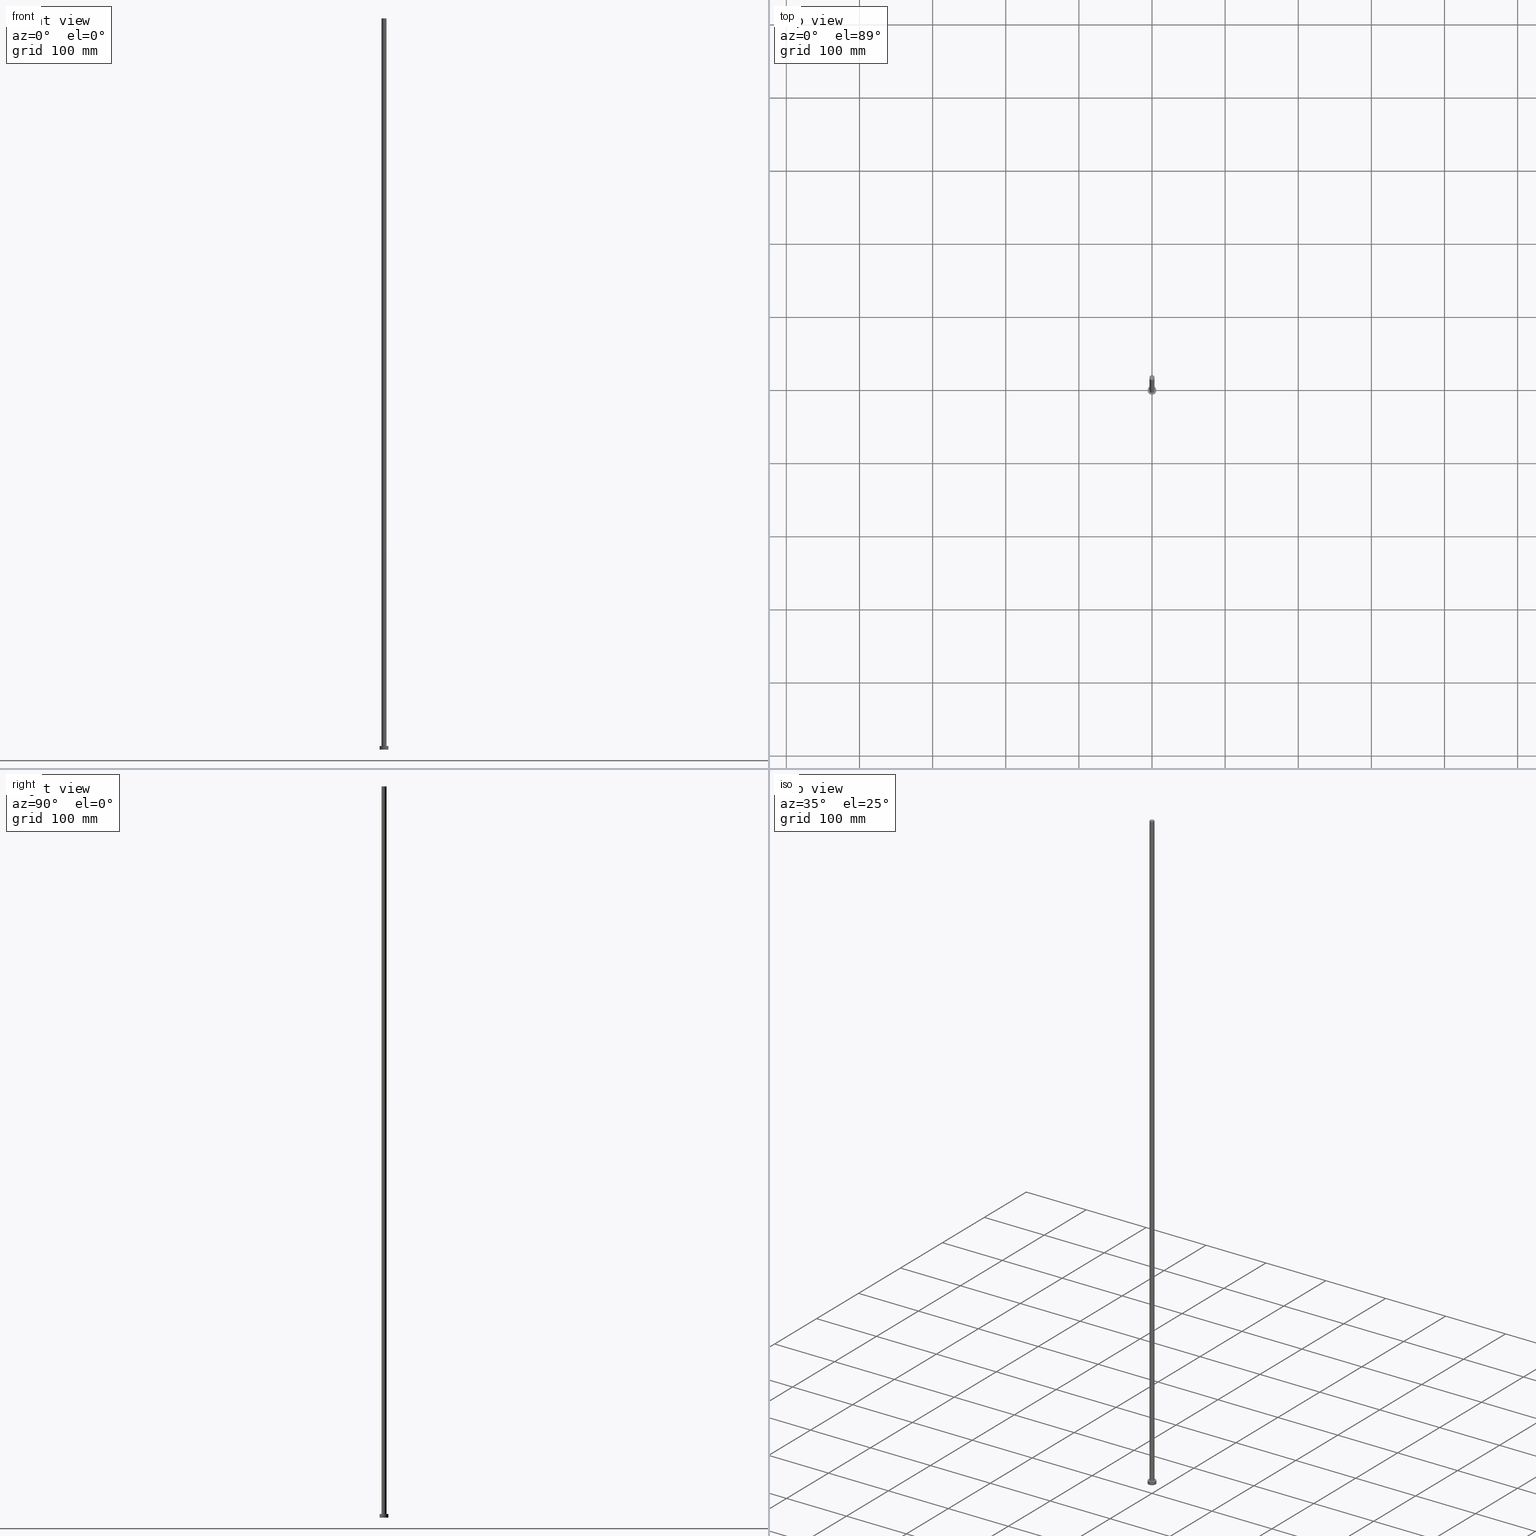
[diagram: canonical four-view strip — front | top / right | iso, engineering-drawing reading convention]
A machine part, canonical four-view strip (front | top / right | iso — engineering-drawing reading convention). The complete STEP part file that produces these views, byte-faithful:
ISO-10303-21;
HEADER;
FILE_DESCRIPTION (( 'STEP AP203' ),
    '1' );
FILE_NAME ('966f.STEP',
    '2023-02-13T14:47:50',
    ( '' ),
    ( '' ),
    'SwSTEP 2.0',
    'SolidWorks 2019',
    '' );
FILE_SCHEMA (( 'CONFIG_CONTROL_DESIGN' ));
ENDSEC;

DATA;
#1 = AXIS2_PLACEMENT_3D ( 'NONE', #232, #108, #174 ) ;
#2 = ORIENTED_EDGE ( 'NONE', *, *, #229, .T. ) ;
#3 = PERSON_AND_ORGANIZATION_ROLE ( 'classification_officer' ) ;
#4 = DIRECTION ( 'NONE',  ( -1.000000000000000000, 0.000000000000000000, 0.000000000000000000 ) ) ;
#5 = CARTESIAN_POINT ( 'NONE',  ( 0.000000000000000000, 0.000000000000000000, 5.000000000000000000 ) ) ;
#6 = CARTESIAN_POINT ( 'NONE',  ( 0.000000000000000000, 0.000000000000000000, 5.000000000000000000 ) ) ;
#7 = AXIS2_PLACEMENT_3D ( 'NONE', #9, #141, #186 ) ;
#8 = CYLINDRICAL_SURFACE ( 'NONE', #11, 6.000000000000000888 ) ;
#9 = CARTESIAN_POINT ( 'NONE',  ( 0.000000000000000000, 0.000000000000000000, 1000.000000000000000 ) ) ;
#10 = AXIS2_PLACEMENT_3D ( 'NONE', #151, #128, #70 ) ;
#11 = AXIS2_PLACEMENT_3D ( 'NONE', #6, #218, #4 ) ;
#12 = LOCAL_TIME ( 15, 47, 50.00000000000000000, #167 ) ;
#13 = EDGE_CURVE ( 'NONE', #220, #180, #119, .T. ) ;
#14 = CYLINDRICAL_SURFACE ( 'NONE', #152, 3.500000000000000000 ) ;
#15 = PERSON_AND_ORGANIZATION ( #85, #160 ) ;
#16 = CC_DESIGN_SECURITY_CLASSIFICATION ( #138, ( #139 ) ) ;
#17 = APPROVAL ( #49, 'NEUR�EN�' ) ;
#18 = EDGE_CURVE ( 'NONE', #182, #220, #83, .T. ) ;
#19 = ORIENTED_EDGE ( 'NONE', *, *, #80, .F. ) ;
#20 = EDGE_LOOP ( 'NONE', ( #200, #82, #179, #238 ) ) ;
#21 = AXIS2_PLACEMENT_3D ( 'NONE', #233, #133, #98 ) ;
#22 = ADVANCED_FACE ( 'NONE', ( #243 ), #136, .F. ) ;
#23 = ORIENTED_EDGE ( 'NONE', *, *, #18, .T. ) ;
#24 = DIRECTION ( 'NONE',  ( 0.000000000000000000, 0.000000000000000000, 1.000000000000000000 ) ) ;
#25 = DIRECTION ( 'NONE',  ( -1.000000000000000000, 0.000000000000000000, 0.000000000000000000 ) ) ;
#26 = ORIENTED_EDGE ( 'NONE', *, *, #169, .T. ) ;
#27 = CARTESIAN_POINT ( 'NONE',  ( 6.000000000000000888, 7.347880794884120722E-16, 0.000000000000000000 ) ) ;
#28 = VERTEX_POINT ( 'NONE', #50 ) ;
#29 = DIRECTION ( 'NONE',  ( 1.000000000000000000, 0.000000000000000000, -0.000000000000000000 ) ) ;
#30 = CARTESIAN_POINT ( 'NONE',  ( -3.500000000000000000, 0.000000000000000000, 5.000000000000000000 ) ) ;
#31 = ADVANCED_FACE ( 'NONE', ( #75, #36 ), #52, .T. ) ;
#32 = LOCAL_TIME ( 15, 47, 50.00000000000000000, #159 ) ;
#33 = DIRECTION ( 'NONE',  ( -0.000000000000000000, -0.000000000000000000, -1.000000000000000000 ) ) ;
#34 = AXIS2_PLACEMENT_3D ( 'NONE', #197, #24, #178 ) ;
#35 = APPLICATION_PROTOCOL_DEFINITION ( 'international standard', 'config_control_design', 1994, #88 ) ;
#36 = FACE_OUTER_BOUND ( 'NONE', #142, .T. ) ;
#37 = CIRCLE ( 'NONE', #249, 3.500000000000000000 ) ;
#38 = CALENDAR_DATE ( 2023, 13, 2 ) ;
#39 = DIRECTION ( 'NONE',  ( 1.000000000000000000, 0.000000000000000000, 0.000000000000000000 ) ) ;
#40 = VERTEX_POINT ( 'NONE', #175 ) ;
#41 = VECTOR ( 'NONE', #161, 1000.000000000000000 ) ;
#42 = ORIENTED_EDGE ( 'NONE', *, *, #107, .F. ) ;
#43 = EDGE_CURVE ( 'NONE', #220, #182, #115, .T. ) ;
#44 = CARTESIAN_POINT ( 'NONE',  ( 6.000000000000000888, 7.347880794884120722E-16, 5.000000000000000000 ) ) ;
#45 = DATE_AND_TIME ( #150, #228 ) ;
#46 = CIRCLE ( 'NONE', #34, 6.000000000000000888 ) ;
#47 = APPROVAL_PERSON_ORGANIZATION ( #109, #17, #51 ) ;
#48 = EDGE_CURVE ( 'NONE', #223, #180, #46, .T. ) ;
#49 = APPROVAL_STATUS ( 'not_yet_approved' ) ;
#50 = CARTESIAN_POINT ( 'NONE',  ( 3.500000000000000000, 4.286263797015735609E-16, 5.000000000000000000 ) ) ;
#51 = APPROVAL_ROLE ( '' ) ;
#52 = PLANE ( 'NONE',  #102 ) ;
#53 = DATE_TIME_ROLE ( 'classification_date' ) ;
#54 = CARTESIAN_POINT ( 'NONE',  ( -6.000000000000000888, 0.000000000000000000, 5.000000000000000000 ) ) ;
#55 = CARTESIAN_POINT ( 'NONE',  ( 3.500000000000000000, 4.286263797015735609E-16, 1000.000000000000000 ) ) ;
#56 = APPROVAL ( #252, 'NEUR�EN�' ) ;
#57 = APPROVAL_PERSON_ORGANIZATION ( #135, #162, #171 ) ;
#58 = CYLINDRICAL_SURFACE ( 'NONE', #7, 3.500000000000000000 ) ;
#59 = CARTESIAN_POINT ( 'NONE',  ( 0.000000000000000000, 0.000000000000000000, 5.000000000000000000 ) ) ;
#60 = ORIENTED_EDGE ( 'NONE', *, *, #219, .T. ) ;
#61 = ADVANCED_FACE ( 'NONE', ( #225 ), #14, .T. ) ;
#62 = CARTESIAN_POINT ( 'NONE',  ( 0.000000000000000000, 0.000000000000000000, 1000.000000000000000 ) ) ;
#63 = FACE_OUTER_BOUND ( 'NONE', #101, .T. ) ;
#64 = CARTESIAN_POINT ( 'NONE',  ( 0.000000000000000000, 0.000000000000000000, 5.000000000000000000 ) ) ;
#65 = APPROVAL_ROLE ( '' ) ;
#66 = CC_DESIGN_DATE_AND_TIME_ASSIGNMENT ( #76, #53, ( #138 ) ) ;
#67 = AXIS2_PLACEMENT_3D ( 'NONE', #181, #118, #25 ) ;
#68 = APPROVAL_DATE_TIME ( #254, #17 ) ;
#69 = MANIFOLD_SOLID_BREP ( 'P�idat vysunut�m3', #156 ) ;
#70 = DIRECTION ( 'NONE',  ( 1.000000000000000000, 0.000000000000000000, 0.000000000000000000 ) ) ;
#71 = DESIGN_CONTEXT ( 'detailed design', #188, 'design' ) ;
#72 = ORIENTED_EDGE ( 'NONE', *, *, #193, .F. ) ;
#73 = PERSON_AND_ORGANIZATION ( #85, #160 ) ;
#74 = LOCAL_TIME ( 15, 47, 50.00000000000000000, #157 ) ;
#75 = FACE_BOUND ( 'NONE', #140, .T. ) ;
#76 = DATE_AND_TIME ( #38, #32 ) ;
#77 =( NAMED_UNIT ( * ) PLANE_ANGLE_UNIT ( ) SI_UNIT ( $, .RADIAN. ) );
#78 = FACE_OUTER_BOUND ( 'NONE', #20, .T. ) ;
#79 = DIRECTION ( 'NONE',  ( 0.000000000000000000, 0.000000000000000000, 1.000000000000000000 ) ) ;
#80 = EDGE_CURVE ( 'NONE', #182, #223, #224, .T. ) ;
#81 = ORIENTED_EDGE ( 'NONE', *, *, #13, .T. ) ;
#82 = ORIENTED_EDGE ( 'NONE', *, *, #80, .T. ) ;
#83 = CIRCLE ( 'NONE', #97, 6.000000000000000888 ) ;
#84 = DIRECTION ( 'NONE',  ( 0.000000000000000000, 0.000000000000000000, 1.000000000000000000 ) ) ;
#85 = PERSON ( 'NEUR�EN�', 'NEUR�EN�', 'NEUR�EN�', ('NEUR�EN�'), ('NEUR�EN�'), ('NEUR�EN�') ) ;
#86 = DIRECTION ( 'NONE',  ( 0.000000000000000000, 0.000000000000000000, 1.000000000000000000 ) ) ;
#87 = CARTESIAN_POINT ( 'NONE',  ( -3.500000000000000000, 0.000000000000000000, 1000.000000000000000 ) ) ;
#88 = APPLICATION_CONTEXT ( 'configuration controlled 3d designs of mechanical parts and assemblies' ) ;
#89 = CIRCLE ( 'NONE', #1, 3.500000000000000000 ) ;
#90 = PERSON_AND_ORGANIZATION_ROLE ( 'design_owner' ) ;
#91 = PERSON_AND_ORGANIZATION_ROLE ( 'creator' ) ;
#92 = UNCERTAINTY_MEASURE_WITH_UNIT (LENGTH_MEASURE( 1.000000000000000082E-05 ), #209, 'distance_accuracy_value', 'NONE');
#93 = LINE ( 'NONE', #55, #207 ) ;
#94 = CC_DESIGN_DATE_AND_TIME_ASSIGNMENT ( #237, #212, ( #163 ) ) ;
#95 = ORIENTED_EDGE ( 'NONE', *, *, #104, .F. ) ;
#96 = CARTESIAN_POINT ( 'NONE',  ( 0.000000000000000000, 0.000000000000000000, 0.000000000000000000 ) ) ;
#97 = AXIS2_PLACEMENT_3D ( 'NONE', #59, #196, #113 ) ;
#98 = DIRECTION ( 'NONE',  ( 1.000000000000000000, 0.000000000000000000, 0.000000000000000000 ) ) ;
#99 = DIRECTION ( 'NONE',  ( 1.000000000000000000, 0.000000000000000000, -0.000000000000000000 ) ) ;
#100 =( NAMED_UNIT ( * ) SI_UNIT ( $, .STERADIAN. ) SOLID_ANGLE_UNIT ( ) );
#101 = EDGE_LOOP ( 'NONE', ( #26, #2 ) ) ;
#102 = AXIS2_PLACEMENT_3D ( 'NONE', #134, #214, #99 ) ;
#103 = PRODUCT_DEFINITION_SHAPE ( 'NONE', 'NONE',  #163 ) ;
#104 = EDGE_CURVE ( 'NONE', #202, #28, #127, .T. ) ;
#105 = AXIS2_PLACEMENT_3D ( 'NONE', #106, #165, #253 ) ;
#106 = CARTESIAN_POINT ( 'NONE',  ( 0.000000000000000000, 0.000000000000000000, 0.000000000000000000 ) ) ;
#107 = EDGE_CURVE ( 'NONE', #180, #223, #137, .T. ) ;
#108 = DIRECTION ( 'NONE',  ( 0.000000000000000000, 0.000000000000000000, 1.000000000000000000 ) ) ;
#109 = PERSON_AND_ORGANIZATION ( #85, #160 ) ;
#110 = ORIENTED_EDGE ( 'NONE', *, *, #169, .F. ) ;
#111 = DATE_AND_TIME ( #215, #74 ) ;
#112 = LOCAL_TIME ( 15, 47, 50.00000000000000000, #153 ) ;
#113 = DIRECTION ( 'NONE',  ( 1.000000000000000000, 0.000000000000000000, 0.000000000000000000 ) ) ;
#114 = APPROVAL_DATE_TIME ( #111, #162 ) ;
#115 = CIRCLE ( 'NONE', #145, 6.000000000000000888 ) ;
#116 = ADVANCED_FACE ( 'NONE', ( #177 ), #8, .T. ) ;
#117 = EDGE_LOOP ( 'NONE', ( #199, #170, #60, #72 ) ) ;
#118 = DIRECTION ( 'NONE',  ( -0.000000000000000000, -0.000000000000000000, -1.000000000000000000 ) ) ;
#119 = LINE ( 'NONE', #54, #41 ) ;
#120 = ORIENTED_EDGE ( 'NONE', *, *, #248, .F. ) ;
#121 = ORIENTED_EDGE ( 'NONE', *, *, #219, .F. ) ;
#122 = CARTESIAN_POINT ( 'NONE',  ( 6.000000000000000888, 7.347880794884120722E-16, 5.000000000000000000 ) ) ;
#123 = PRODUCT_RELATED_PRODUCT_CATEGORY ( 'detail', '', ( #204 ) ) ;
#124 = CARTESIAN_POINT ( 'NONE',  ( 0.000000000000000000, 0.000000000000000000, 1000.000000000000000 ) ) ;
#125 = ADVANCED_FACE ( 'NONE', ( #78 ), #239, .T. ) ;
#126 = APPROVAL_DATE_TIME ( #45, #56 ) ;
#127 = CIRCLE ( 'NONE', #10, 3.500000000000000000 ) ;
#128 = DIRECTION ( 'NONE',  ( 0.000000000000000000, 0.000000000000000000, 1.000000000000000000 ) ) ;
#129 = PERSON_AND_ORGANIZATION_ROLE ( 'creator' ) ;
#130 = CALENDAR_DATE ( 2023, 13, 2 ) ;
#131 = EDGE_LOOP ( 'NONE', ( #19, #213, #81, #217 ) ) ;
#132 = DIRECTION ( 'NONE',  ( -0.000000000000000000, -0.000000000000000000, -1.000000000000000000 ) ) ;
#133 = DIRECTION ( 'NONE',  ( 0.000000000000000000, 0.000000000000000000, 1.000000000000000000 ) ) ;
#134 = CARTESIAN_POINT ( 'NONE',  ( 0.000000000000000000, 0.000000000000000000, 5.000000000000000000 ) ) ;
#135 = PERSON_AND_ORGANIZATION ( #85, #160 ) ;
#136 = PLANE ( 'NONE',  #190 ) ;
#137 = CIRCLE ( 'NONE', #21, 6.000000000000000888 ) ;
#138 = SECURITY_CLASSIFICATION ( '', '', #194 ) ;
#139 = PRODUCT_DEFINITION_FORMATION_WITH_SPECIFIED_SOURCE ( 'LIBOVOLN�', '', #204, .NOT_KNOWN. ) ;
#140 = EDGE_LOOP ( 'NONE', ( #95, #121 ) ) ;
#141 = DIRECTION ( 'NONE',  ( -0.000000000000000000, -0.000000000000000000, -1.000000000000000000 ) ) ;
#142 = EDGE_LOOP ( 'NONE', ( #158, #23 ) ) ;
#143 = EDGE_LOOP ( 'NONE', ( #120, #110, #245, #240 ) ) ;
#144 = CARTESIAN_POINT ( 'NONE',  ( 0.000000000000000000, 0.000000000000000000, 1000.000000000000000 ) ) ;
#145 = AXIS2_PLACEMENT_3D ( 'NONE', #5, #79, #39 ) ;
#146 = CARTESIAN_POINT ( 'NONE',  ( -6.000000000000000888, 0.000000000000000000, 0.000000000000000000 ) ) ;
#147 = ADVANCED_FACE ( 'NONE', ( #242 ), #58, .T. ) ;
#148 = VECTOR ( 'NONE', #33, 1000.000000000000000 ) ;
#149 = DIRECTION ( 'NONE',  ( 1.000000000000000000, 0.000000000000000000, 0.000000000000000000 ) ) ;
#150 = CALENDAR_DATE ( 2023, 13, 2 ) ;
#151 = CARTESIAN_POINT ( 'NONE',  ( 0.000000000000000000, 0.000000000000000000, 5.000000000000000000 ) ) ;
#152 = AXIS2_PLACEMENT_3D ( 'NONE', #144, #205, #221 ) ;
#153 = COORDINATED_UNIVERSAL_TIME_OFFSET ( 1, 0, .AHEAD. ) ;
#154 = ADVANCED_FACE ( 'NONE', ( #63 ), #206, .T. ) ;
#155 = DIRECTION ( 'NONE',  ( 0.000000000000000000, 0.000000000000000000, 1.000000000000000000 ) ) ;
#156 = CLOSED_SHELL ( 'NONE', ( #61, #125, #116, #31, #22, #147, #154 ) ) ;
#157 = COORDINATED_UNIVERSAL_TIME_OFFSET ( 1, 0, .AHEAD. ) ;
#158 = ORIENTED_EDGE ( 'NONE', *, *, #43, .T. ) ;
#159 = COORDINATED_UNIVERSAL_TIME_OFFSET ( 1, 0, .AHEAD. ) ;
#160 = ORGANIZATION ( 'NEUR�EN�', 'NEUR�EN�', '' ) ;
#161 = DIRECTION ( 'NONE',  ( -0.000000000000000000, -0.000000000000000000, -1.000000000000000000 ) ) ;
#162 = APPROVAL ( #176, 'NEUR�EN�' ) ;
#163 = PRODUCT_DEFINITION ( 'NEZN�M�', '', #139, #71 ) ;
#164 = PERSON_AND_ORGANIZATION ( #85, #160 ) ;
#165 = DIRECTION ( 'NONE',  ( 0.000000000000000000, 0.000000000000000000, 1.000000000000000000 ) ) ;
#166 = AXIS2_PLACEMENT_3D ( 'NONE', #124, #84, #29 ) ;
#167 = COORDINATED_UNIVERSAL_TIME_OFFSET ( 1, 0, .AHEAD. ) ;
#168 = CC_DESIGN_APPROVAL ( #17, ( #139 ) ) ;
#169 = EDGE_CURVE ( 'NONE', #241, #40, #37, .T. ) ;
#170 = ORIENTED_EDGE ( 'NONE', *, *, #248, .T. ) ;
#171 = APPROVAL_ROLE ( '' ) ;
#172 = CIRCLE ( 'NONE', #246, 3.500000000000000000 ) ;
#173 = EDGE_LOOP ( 'NONE', ( #42, #255 ) ) ;
#174 = DIRECTION ( 'NONE',  ( 1.000000000000000000, 0.000000000000000000, 0.000000000000000000 ) ) ;
#175 = CARTESIAN_POINT ( 'NONE',  ( 3.500000000000000000, 4.286263797015735609E-16, 1000.000000000000000 ) ) ;
#176 = APPROVAL_STATUS ( 'not_yet_approved' ) ;
#177 = FACE_OUTER_BOUND ( 'NONE', #131, .T. ) ;
#178 = DIRECTION ( 'NONE',  ( 1.000000000000000000, 0.000000000000000000, 0.000000000000000000 ) ) ;
#179 = ORIENTED_EDGE ( 'NONE', *, *, #48, .T. ) ;
#180 = VERTEX_POINT ( 'NONE', #146 ) ;
#181 = CARTESIAN_POINT ( 'NONE',  ( 0.000000000000000000, 0.000000000000000000, 5.000000000000000000 ) ) ;
#182 = VERTEX_POINT ( 'NONE', #122 ) ;
#183 =( GEOMETRIC_REPRESENTATION_CONTEXT ( 3 ) GLOBAL_UNCERTAINTY_ASSIGNED_CONTEXT ( ( #92 ) ) GLOBAL_UNIT_ASSIGNED_CONTEXT ( ( #209, #77, #100 ) ) REPRESENTATION_CONTEXT ( 'NONE', 'WORKASPACE' ) );
#184 = DIRECTION ( 'NONE',  ( 0.000000000000000000, 0.000000000000000000, 1.000000000000000000 ) ) ;
#185 = CC_DESIGN_PERSON_AND_ORGANIZATION_ASSIGNMENT ( #73, #3, ( #138 ) ) ;
#186 = DIRECTION ( 'NONE',  ( -1.000000000000000000, 0.000000000000000000, 0.000000000000000000 ) ) ;
#187 = DIRECTION ( 'NONE',  ( -0.000000000000000000, -0.000000000000000000, -1.000000000000000000 ) ) ;
#188 = APPLICATION_CONTEXT ( 'configuration controlled 3d designs of mechanical parts and assemblies' ) ;
#189 = CC_DESIGN_APPROVAL ( #56, ( #163 ) ) ;
#190 = AXIS2_PLACEMENT_3D ( 'NONE', #96, #155, #234 ) ;
#191 = MECHANICAL_CONTEXT ( 'NONE', #88, 'mechanical' ) ;
#192 = APPLICATION_PROTOCOL_DEFINITION ( 'international standard', 'config_control_design', 1994, #188 ) ;
#193 = EDGE_CURVE ( 'NONE', #241, #202, #203, .T. ) ;
#194 = SECURITY_CLASSIFICATION_LEVEL ( 'unclassified' ) ;
#195 = PERSON_AND_ORGANIZATION ( #85, #160 ) ;
#196 = DIRECTION ( 'NONE',  ( 0.000000000000000000, 0.000000000000000000, 1.000000000000000000 ) ) ;
#197 = CARTESIAN_POINT ( 'NONE',  ( 0.000000000000000000, 0.000000000000000000, 0.000000000000000000 ) ) ;
#198 = CC_DESIGN_PERSON_AND_ORGANIZATION_ASSIGNMENT ( #195, #91, ( #163 ) ) ;
#199 = ORIENTED_EDGE ( 'NONE', *, *, #229, .F. ) ;
#200 = ORIENTED_EDGE ( 'NONE', *, *, #18, .F. ) ;
#201 = CARTESIAN_POINT ( 'NONE',  ( -6.000000000000000888, 0.000000000000000000, 5.000000000000000000 ) ) ;
#202 = VERTEX_POINT ( 'NONE', #30 ) ;
#203 = LINE ( 'NONE', #87, #148 ) ;
#204 = PRODUCT ( '966f', '966f', '', ( #191 ) ) ;
#205 = DIRECTION ( 'NONE',  ( -0.000000000000000000, -0.000000000000000000, -1.000000000000000000 ) ) ;
#206 = PLANE ( 'NONE',  #166 ) ;
#207 = VECTOR ( 'NONE', #132, 1000.000000000000000 ) ;
#208 = PERSON_AND_ORGANIZATION ( #85, #160 ) ;
#209 =( LENGTH_UNIT ( ) NAMED_UNIT ( * ) SI_UNIT ( .MILLI., .METRE. ) );
#210 = PERSON_AND_ORGANIZATION_ROLE ( 'design_supplier' ) ;
#211 = CC_DESIGN_PERSON_AND_ORGANIZATION_ASSIGNMENT ( #164, #90, ( #204 ) ) ;
#212 = DATE_TIME_ROLE ( 'creation_date' ) ;
#213 = ORIENTED_EDGE ( 'NONE', *, *, #43, .F. ) ;
#214 = DIRECTION ( 'NONE',  ( 0.000000000000000000, 0.000000000000000000, 1.000000000000000000 ) ) ;
#215 = CALENDAR_DATE ( 2023, 13, 2 ) ;
#216 = APPROVAL_PERSON_ORGANIZATION ( #15, #56, #65 ) ;
#217 = ORIENTED_EDGE ( 'NONE', *, *, #107, .T. ) ;
#218 = DIRECTION ( 'NONE',  ( -0.000000000000000000, -0.000000000000000000, -1.000000000000000000 ) ) ;
#219 = EDGE_CURVE ( 'NONE', #28, #202, #172, .T. ) ;
#220 = VERTEX_POINT ( 'NONE', #201 ) ;
#221 = DIRECTION ( 'NONE',  ( -1.000000000000000000, 0.000000000000000000, 0.000000000000000000 ) ) ;
#222 = ADVANCED_BREP_SHAPE_REPRESENTATION ( '966f', ( #69, #105 ), #183 ) ;
#223 = VERTEX_POINT ( 'NONE', #27 ) ;
#224 = LINE ( 'NONE', #44, #247 ) ;
#225 = FACE_OUTER_BOUND ( 'NONE', #117, .T. ) ;
#226 = CC_DESIGN_PERSON_AND_ORGANIZATION_ASSIGNMENT ( #208, #210, ( #139 ) ) ;
#227 = COORDINATED_UNIVERSAL_TIME_OFFSET ( 1, 0, .AHEAD. ) ;
#228 = LOCAL_TIME ( 15, 47, 50.00000000000000000, #227 ) ;
#229 = EDGE_CURVE ( 'NONE', #40, #241, #89, .T. ) ;
#230 = PERSON_AND_ORGANIZATION ( #85, #160 ) ;
#231 = CALENDAR_DATE ( 2023, 13, 2 ) ;
#232 = CARTESIAN_POINT ( 'NONE',  ( 0.000000000000000000, 0.000000000000000000, 1000.000000000000000 ) ) ;
#233 = CARTESIAN_POINT ( 'NONE',  ( 0.000000000000000000, 0.000000000000000000, 0.000000000000000000 ) ) ;
#234 = DIRECTION ( 'NONE',  ( 1.000000000000000000, 0.000000000000000000, -0.000000000000000000 ) ) ;
#235 = SHAPE_DEFINITION_REPRESENTATION ( #103, #222 ) ;
#236 = CARTESIAN_POINT ( 'NONE',  ( -3.500000000000000000, 0.000000000000000000, 1000.000000000000000 ) ) ;
#237 = DATE_AND_TIME ( #231, #112 ) ;
#238 = ORIENTED_EDGE ( 'NONE', *, *, #13, .F. ) ;
#239 = CYLINDRICAL_SURFACE ( 'NONE', #67, 6.000000000000000888 ) ;
#240 = ORIENTED_EDGE ( 'NONE', *, *, #104, .T. ) ;
#241 = VERTEX_POINT ( 'NONE', #236 ) ;
#242 = FACE_OUTER_BOUND ( 'NONE', #143, .T. ) ;
#243 = FACE_OUTER_BOUND ( 'NONE', #173, .T. ) ;
#244 = CC_DESIGN_PERSON_AND_ORGANIZATION_ASSIGNMENT ( #230, #129, ( #139 ) ) ;
#245 = ORIENTED_EDGE ( 'NONE', *, *, #193, .T. ) ;
#246 = AXIS2_PLACEMENT_3D ( 'NONE', #64, #86, #149 ) ;
#247 = VECTOR ( 'NONE', #187, 1000.000000000000000 ) ;
#248 = EDGE_CURVE ( 'NONE', #40, #28, #93, .T. ) ;
#249 = AXIS2_PLACEMENT_3D ( 'NONE', #62, #184, #251 ) ;
#250 = CC_DESIGN_APPROVAL ( #162, ( #138 ) ) ;
#251 = DIRECTION ( 'NONE',  ( 1.000000000000000000, 0.000000000000000000, 0.000000000000000000 ) ) ;
#252 = APPROVAL_STATUS ( 'not_yet_approved' ) ;
#253 = DIRECTION ( 'NONE',  ( 1.000000000000000000, 0.000000000000000000, 0.000000000000000000 ) ) ;
#254 = DATE_AND_TIME ( #130, #12 ) ;
#255 = ORIENTED_EDGE ( 'NONE', *, *, #48, .F. ) ;
ENDSEC;
END-ISO-10303-21;
